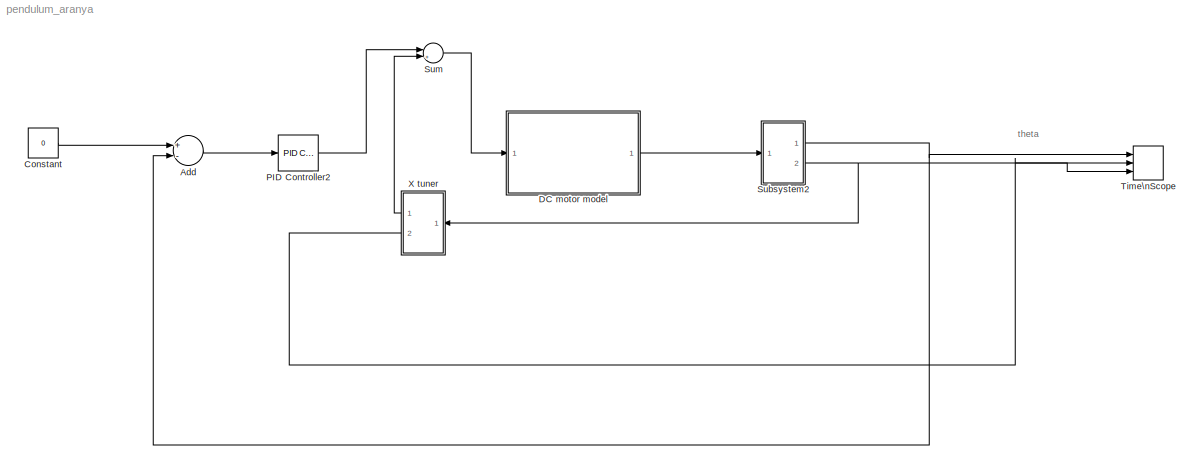
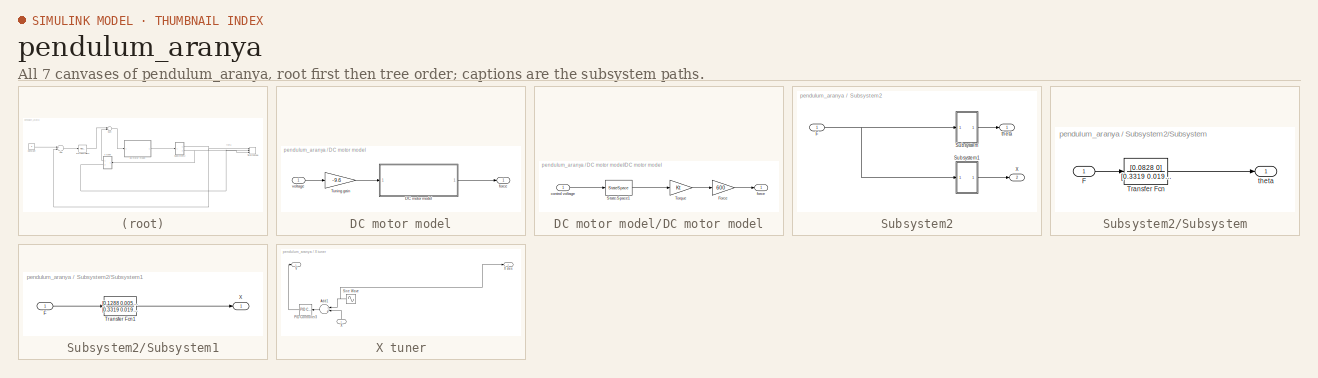
[diagram: thumbnail index - all 7 canvases of the model, root first then tree order]
MODEL pendulum_aranya
KIND model
BLOCK [Sum] Add
  InputSameDT = off
  Inputs = +-
  OutDataTypeStr = Inherit: Inherit via internal rule
  Ports = [2, 1]
  SID = 17
  SaturateOnIntegerOverflow = off
BLOCK [Constant] Constant
  SID = 18
  Value = 0
BLOCK [SubSystem] DC motor model
  Ports = [1, 1]
  RequestExecContextInheritance = off
  SID = 1
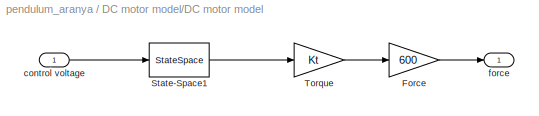
BLOCK [SubSystem] DC motor model/DC motor model
  Ports = [1, 1]
  RequestExecContextInheritance = off
  SID = 3
BLOCK [Gain] DC motor model/DC motor model/Force
  Gain = 600
  OutDataTypeStr = Inherit: Inherit via internal rule
  ParamDataTypeStr = Inherit: Inherit via internal rule
  SID = 5
  SaturateOnIntegerOverflow = off
BLOCK [StateSpace] DC motor model/DC motor model/State-Space1
  A = [-d/J Kt/J;-Kb/L -R/L]
  B = [0; 1/L]
  C = [0 1]
  D = 0
  Ports = [1, 1]
  SID = 6
  X0 = 0
BLOCK [Gain] DC motor model/DC motor model/Torque
  Gain = Kt
  OutDataTypeStr = Inherit: Inherit via internal rule
  ParamDataTypeStr = Inherit: Inherit via internal rule
  SID = 7
  SaturateOnIntegerOverflow = off
BLOCK [Inport] DC motor model/DC motor model/control voltage
  IconDisplay = Port number
  SID = 4
BLOCK [Outport] DC motor model/DC motor model/force
  IconDisplay = Port number
  SID = 8
BLOCK [Gain] DC motor model/Tuning gain
  Gain = -9.6
  OutDataTypeStr = Inherit: Inherit via internal rule
  ParamDataTypeStr = Inherit: Inherit via internal rule
  SID = 9
  SaturateOnIntegerOverflow = off
BLOCK [Outport] DC motor model/force
  IconDisplay = Port number
  SID = 10
BLOCK [Inport] DC motor model/voltage
  IconDisplay = Port number
  SID = 2
BLOCK [Reference] PID Controller2  REF=simulink/Continuous/PID Controller
  AntiWindupMode = none
  Controller = PID
  ControllerParametersSource = internal
  D = 826.40709745591
  DGainOutDataTypeStr = Inherit: Inherit via internal rule
  DOutDataTypeStr = Inherit: Inherit via internal rule
  DOutMax = []
  DOutMin = []
  DParamDataTypeStr = Inherit: Inherit via internal rule
  DParamMax = []
  DParamMin = []
  DProdOutDataTypeStr = Inherit: Inherit via internal rule
  DifferentiatorICPrevScaledInput = 0
  DifferentiatorOutDataTypeStr = Inherit: Inherit via internal rule
  DifferentiatorOutMax = []
  DifferentiatorOutMin = []
  ExternalReset = none
  FilterContinuousStateAttributes = ''
  FilterMethod = Forward Euler
  FilterOutDataTypeStr = Inherit: Inherit via internal rule
  FilterOutMax = []
  FilterOutMin = []
  FilterRTWStateStorageClass = Auto
  FilterStateMustResolveToSignalObject = off
  Form = Parallel
  I = 0.149570338875648
  IGainOutDataTypeStr = Inherit: Inherit via internal rule
  IOutDataTypeStr = Inherit: Inherit via internal rule
  IOutMax = []
  IOutMin = []
  IParamDataTypeStr = Inherit: Inherit via internal rule
  IParamMax = []
  IParamMin = []
  IProdOutDataTypeStr = Inherit: Inherit via internal rule
  IgnoreLimit = off
  InitialConditionForFilter = 0
  InitialConditionForIntegrator = 0
  InitialConditionSource = internal
  IntegratorContinuousStateAttributes = ''
  IntegratorMethod = Forward Euler
  IntegratorOutDataTypeStr = Inherit: Inherit via internal rule
  IntegratorOutMax = []
  IntegratorOutMin = []
  IntegratorRTWStateStorageClass = Auto
  IntegratorStateMustResolveToSignalObject = off
  Kb = 1
  KbOutDataTypeStr = Inherit: Inherit via internal rule
  KbOutMax = []
  KbOutMin = []
  KbParamDataTypeStr = Inherit: Inherit via internal rule
  KbParamMax = []
  KbParamMin = []
  Kt = 1
  KtOutDataTypeStr = Inherit: Inherit via internal rule
  KtOutMax = []
  KtOutMin = []
  KtParamDataTypeStr = Inherit: Inherit via internal rule
  KtParamMax = []
  KtParamMin = []
  LimitOutput = off
  LinearizeAsGain = off
  LockScale = off
  LowerSaturationLimit = -inf
  N = 0.0504202201249579
  NGainOutDataTypeStr = Inherit: Inherit via internal rule
  NOutDataTypeStr = Inherit: Inherit via internal rule
  NOutMax = []
  NOutMin = []
  NParamDataTypeStr = Inherit: Inherit via internal rule
  NParamMax = []
  NParamMin = []
  NProdOutDataTypeStr = Inherit: Inherit via internal rule
  P = 185.474230733501
  PGainOutDataTypeStr = Inherit: Inherit via internal rule
  POutDataTypeStr = Inherit: Inherit via internal rule
  POutMax = []
  POutMin = []
  PParamDataTypeStr = Inherit: Inherit via internal rule
  PParamMax = []
  PParamMin = []
  PProdOutDataTypeStr = Inherit: Inherit via internal rule
  Ports = [1, 1]
  RndMeth = Floor
  SID = 28
  SampleTime = -1
  SaturateOnIntegerOverflow = off
  SaturationOutDataTypeStr = Inherit: Same as input
  SaturationOutMax = []
  SaturationOutMin = []
  SourceBlock = simulink/Continuous/PID Controller
  SourceType = PID 1dof
  SumAccumDataTypeStr = Inherit: Inherit via internal rule
  SumDAccumDataTypeStr = Inherit: Inherit via internal rule
  SumDOutDataTypeStr = Inherit: Inherit via internal rule
  SumDOutMax = []
  SumDOutMin = []
  SumI1AccumDataTypeStr = Inherit: Inherit via internal rule
  SumI1OutDataTypeStr = Inherit: Inherit via internal rule
  SumI1OutMax = []
  SumI1OutMin = []
  SumI2AccumDataTypeStr = Inherit: Inherit via internal rule
  SumI2OutDataTypeStr = Inherit: Inherit via internal rule
  SumI2OutMax = []
  SumI2OutMin = []
  SumI3AccumDataTypeStr = Inherit: Inherit via internal rule
  SumI3OutDataTypeStr = Inherit: Inherit via internal rule
  SumI3OutMax = []
  SumI3OutMin = []
  SumOutDataTypeStr = Inherit: Inherit via internal rule
  SumOutMax = []
  SumOutMin = []
  TimeDomain = Continuous-time
  TrackingMode = off
  UpperSaturationLimit = inf
  UseFilter = on
  ZeroCross = on
BLOCK [SubSystem] Subsystem2
  Ports = [1, 2]
  RequestExecContextInheritance = off
  SID = 36
BLOCK [Inport] Subsystem2/F
  IconDisplay = Port number
  SID = 37
BLOCK [SubSystem] Subsystem2/Subsystem
  Ports = [1, 1]
  RequestExecContextInheritance = off
  SID = 30
BLOCK [Inport] Subsystem2/Subsystem/F
  IconDisplay = Port number
  SID = 31
BLOCK [TransferFcn] Subsystem2/Subsystem/Transfer Fcn
  Denominator = [0.3319 0.0196 2.1365 0.0406]
  Numerator = [0.0828 0]
  SID = 11
BLOCK [Outport] Subsystem2/Subsystem/theta
  IconDisplay = Port number
  SID = 32
BLOCK [SubSystem] Subsystem2/Subsystem1
  Ports = [1, 1]
  RequestExecContextInheritance = off
  SID = 33
BLOCK [Inport] Subsystem2/Subsystem1/F
  IconDisplay = Port number
  SID = 34
BLOCK [TransferFcn] Subsystem2/Subsystem1/Transfer Fcn1
  Denominator = [0.3319 0.0196 2.1365 0.0406 0]
  Numerator = [0.1288 0.005 0.8123]
  SID = 21
BLOCK [Outport] Subsystem2/Subsystem1/X
  IconDisplay = Port number
  SID = 35
BLOCK [Outport] Subsystem2/X
  IconDisplay = Port number
  Port = 2
  SID = 39
BLOCK [Outport] Subsystem2/theta
  IconDisplay = Port number
  SID = 38
BLOCK [Sum] Sum
  IconShape = round
  InputSameDT = off
  Inputs = |++
  OutDataTypeStr = Inherit: Inherit via internal rule
  Ports = [2, 1]
  SID = 15
  SaturateOnIntegerOverflow = off
BLOCK [TimeScope] Time\nScope
  DefaultConfigurationName = spbscopes.TimeScopeBlockCfg
  NumInputPorts = 3
  Ports = [3]
  SID = 19
  ScopeSpecificationString = spbscopes.TimeScopeBlockCfg('CurrentConfiguration', extmgr.ConfigurationSet(extmgr.Configuration('Core','General UI',true),extmgr.Configuration('Core','Source UI',true),extmgr.Configuration('Sources','WiredSimulink',true),extmgr.Configuration('Visuals','Time Domain',true,'DisplayPropertyDefaults',struct('MinYLimReal','-1.25039','MaxYLimReal','1.25348','YLabelReal','Amplitude','MinYLimMag','0','Max...<+1379ch>
  UserDataPersistent = on
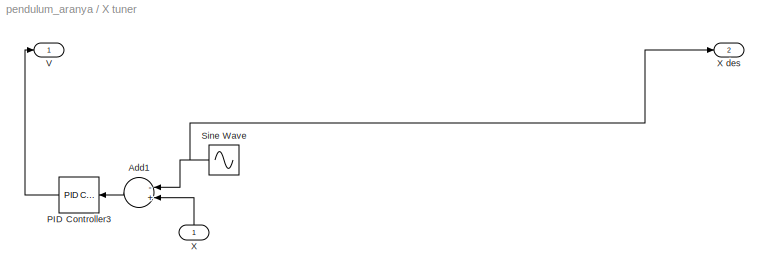
BLOCK [SubSystem] X tuner
  Ports = [1, 2]
  RequestExecContextInheritance = off
  SID = 40
BLOCK [Sum] X tuner/Add1
  InputSameDT = off
  Inputs = -+
  OutDataTypeStr = Inherit: Inherit via internal rule
  Ports = [2, 1]
  SID = 23
  SaturateOnIntegerOverflow = off
BLOCK [Reference] X tuner/PID Controller3  REF=simulink/Continuous/PID Controller
  AntiWindupMode = none
  Controller = PID
  ControllerParametersSource = internal
  D = 5.88987419538334
  DGainOutDataTypeStr = Inherit: Inherit via internal rule
  DOutDataTypeStr = Inherit: Inherit via internal rule
  DOutMax = []
  DOutMin = []
  DParamDataTypeStr = Inherit: Inherit via internal rule
  DParamMax = []
  DParamMin = []
  DProdOutDataTypeStr = Inherit: Inherit via internal rule
  DifferentiatorICPrevScaledInput = 0
  DifferentiatorOutDataTypeStr = Inherit: Inherit via internal rule
  DifferentiatorOutMax = []
  DifferentiatorOutMin = []
  ExternalReset = none
  FilterContinuousStateAttributes = ''
  FilterMethod = Forward Euler
  FilterOutDataTypeStr = Inherit: Inherit via internal rule
  FilterOutMax = []
  FilterOutMin = []
  FilterRTWStateStorageClass = Auto
  FilterStateMustResolveToSignalObject = off
  Form = Parallel
  I = 29249.2650914478
  IGainOutDataTypeStr = Inherit: Inherit via internal rule
  IOutDataTypeStr = Inherit: Inherit via internal rule
  IOutMax = []
  IOutMin = []
  IParamDataTypeStr = Inherit: Inherit via internal rule
  IParamMax = []
  IParamMin = []
  IProdOutDataTypeStr = Inherit: Inherit via internal rule
  IgnoreLimit = off
  InitialConditionForFilter = 0
  InitialConditionForIntegrator = 0
  InitialConditionSource = internal
  IntegratorContinuousStateAttributes = ''
  IntegratorMethod = Forward Euler
  IntegratorOutDataTypeStr = Inherit: Inherit via internal rule
  IntegratorOutMax = []
  IntegratorOutMin = []
  IntegratorRTWStateStorageClass = Auto
  IntegratorStateMustResolveToSignalObject = off
  Kb = 1
  KbOutDataTypeStr = Inherit: Inherit via internal rule
  KbOutMax = []
  KbOutMin = []
  KbParamDataTypeStr = Inherit: Inherit via internal rule
  KbParamMax = []
  KbParamMin = []
  Kt = 1
  KtOutDataTypeStr = Inherit: Inherit via internal rule
  KtOutMax = []
  KtOutMin = []
  KtParamDataTypeStr = Inherit: Inherit via internal rule
  KtParamMax = []
  KtParamMin = []
  LimitOutput = off
  LinearizeAsGain = off
  LockScale = off
  LowerSaturationLimit = -inf
  N = 29549.3786820731
  NGainOutDataTypeStr = Inherit: Inherit via internal rule
  NOutDataTypeStr = Inherit: Inherit via internal rule
  NOutMax = []
  NOutMin = []
  NParamDataTypeStr = Inherit: Inherit via internal rule
  NParamMax = []
  NParamMin = []
  NProdOutDataTypeStr = Inherit: Inherit via internal rule
  P = 831.140160718589
  PGainOutDataTypeStr = Inherit: Inherit via internal rule
  POutDataTypeStr = Inherit: Inherit via internal rule
  POutMax = []
  POutMin = []
  PParamDataTypeStr = Inherit: Inherit via internal rule
  PParamMax = []
  PParamMin = []
  PProdOutDataTypeStr = Inherit: Inherit via internal rule
  Ports = [1, 1]
  RndMeth = Floor
  SID = 29
  SampleTime = -1
  SaturateOnIntegerOverflow = off
  SaturationOutDataTypeStr = Inherit: Same as input
  SaturationOutMax = []
  SaturationOutMin = []
  SourceBlock = simulink/Continuous/PID Controller
  SourceType = PID 1dof
  SumAccumDataTypeStr = Inherit: Inherit via internal rule
  SumDAccumDataTypeStr = Inherit: Inherit via internal rule
  SumDOutDataTypeStr = Inherit: Inherit via internal rule
  SumDOutMax = []
  SumDOutMin = []
  SumI1AccumDataTypeStr = Inherit: Inherit via internal rule
  SumI1OutDataTypeStr = Inherit: Inherit via internal rule
  SumI1OutMax = []
  SumI1OutMin = []
  SumI2AccumDataTypeStr = Inherit: Inherit via internal rule
  SumI2OutDataTypeStr = Inherit: Inherit via internal rule
  SumI2OutMax = []
  SumI2OutMin = []
  SumI3AccumDataTypeStr = Inherit: Inherit via internal rule
  SumI3OutDataTypeStr = Inherit: Inherit via internal rule
  SumI3OutMax = []
  SumI3OutMin = []
  SumOutDataTypeStr = Inherit: Inherit via internal rule
  SumOutMax = []
  SumOutMin = []
  TimeDomain = Continuous-time
  TrackingMode = off
  UpperSaturationLimit = inf
  UseFilter = on
  ZeroCross = on
BLOCK [Sin] X tuner/Sine Wave
  Ports = [0, 1]
  SID = 16
  SampleTime = 0
BLOCK [Outport] X tuner/V
  IconDisplay = Port number
  SID = 42
BLOCK [Inport] X tuner/X
  IconDisplay = Port number
  SID = 41
BLOCK [Outport] X tuner/X des
  IconDisplay = Port number
  Port = 2
  SID = 43
ANNOTATION (root): theta
LINE Add:1 -> PID Controller2:1
LINE Constant:1 -> Add:1
LINE DC motor model/DC motor model/Force:1 -> DC motor model/DC motor model/force:1
LINE DC motor model/DC motor model/State-Space1:1 -> DC motor model/DC motor model/Torque:1
LINE DC motor model/DC motor model/Torque:1 -> DC motor model/DC motor model/Force:1
LINE DC motor model/DC motor model/control voltage:1 -> DC motor model/DC motor model/State-Space1:1
LINE DC motor model/DC motor model:1 -> DC motor model/force:1
LINE DC motor model/Tuning gain:1 -> DC motor model/DC motor model:1
LINE DC motor model/voltage:1 -> DC motor model/Tuning gain:1
LINE DC motor model:1 -> Subsystem2:1
LINE PID Controller2:1 -> Sum:1
NET Subsystem2/F:1 -> Subsystem2/Subsystem1:1, Subsystem2/Subsystem:1
LINE Subsystem2/Subsystem/F:1 -> Subsystem2/Subsystem/Transfer Fcn:1
LINE Subsystem2/Subsystem/Transfer Fcn:1 -> Subsystem2/Subsystem/theta:1
LINE Subsystem2/Subsystem1/F:1 -> Subsystem2/Subsystem1/Transfer Fcn1:1
LINE Subsystem2/Subsystem1/Transfer Fcn1:1 -> Subsystem2/Subsystem1/X:1
LINE Subsystem2/Subsystem1:1 -> Subsystem2/X:1
LINE Subsystem2/Subsystem:1 -> Subsystem2/theta:1
NET Subsystem2:1 -> Add:2, Time\nScope:1
NET Subsystem2:2 -> Time\nScope:3, X tuner:1
LINE Sum:1 -> DC motor model:1
LINE X tuner/Add1:1 -> X tuner/PID Controller3:1
LINE X tuner/PID Controller3:1 -> X tuner/V:1
NET X tuner/Sine Wave:1 -> X tuner/Add1:1, X tuner/X des:1
LINE X tuner/X:1 -> X tuner/Add1:2
LINE X tuner:1 -> Sum:2
LINE X tuner:2 -> Time\nScope:2
note: NET lines group one-source signal fan-out (src -> all destinations, sorted); 1:1 wires keep LINE
